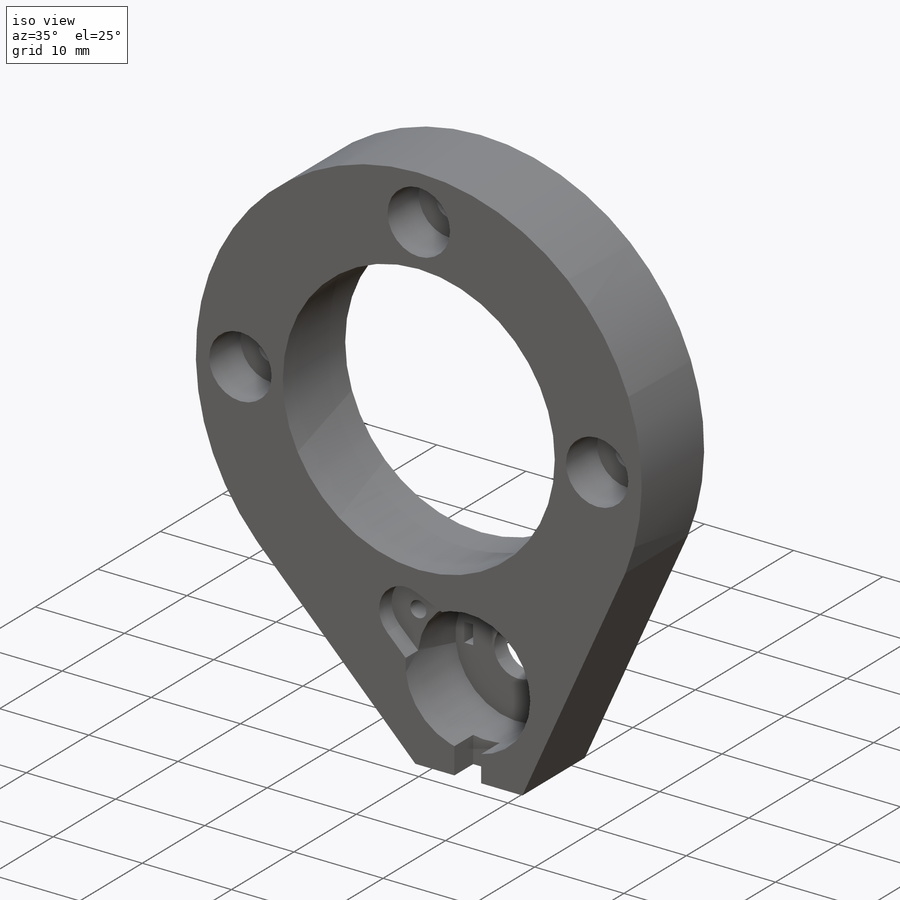
[diagram: iso view]
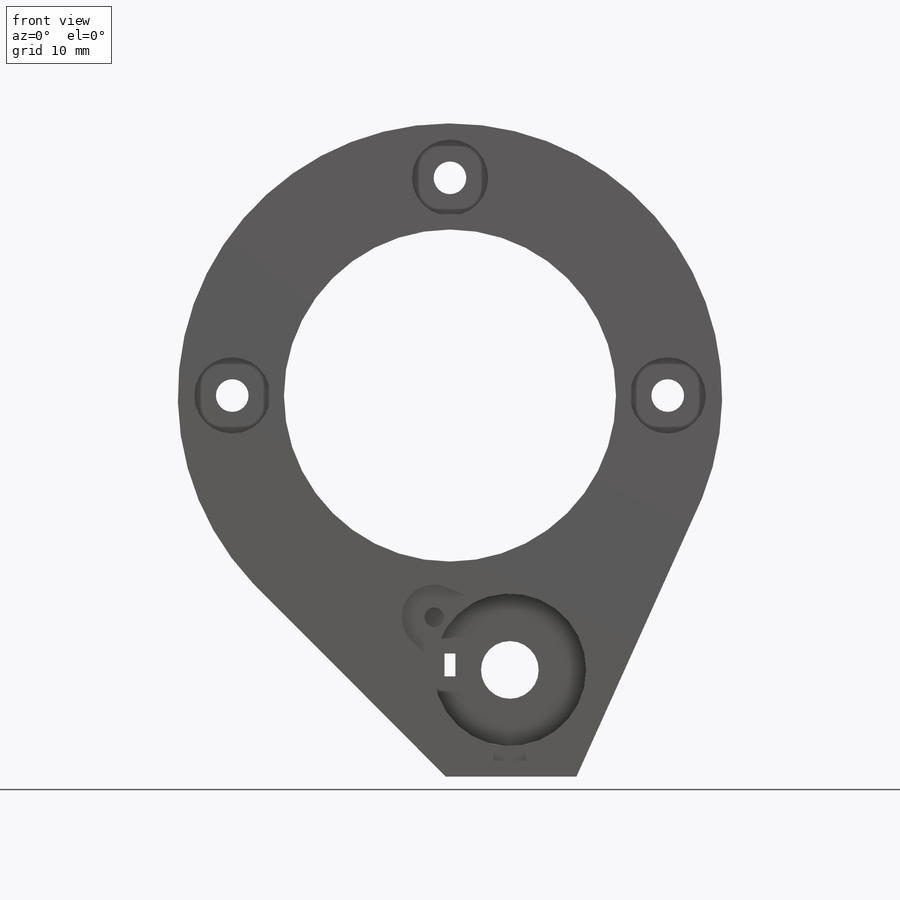
[diagram: front view]
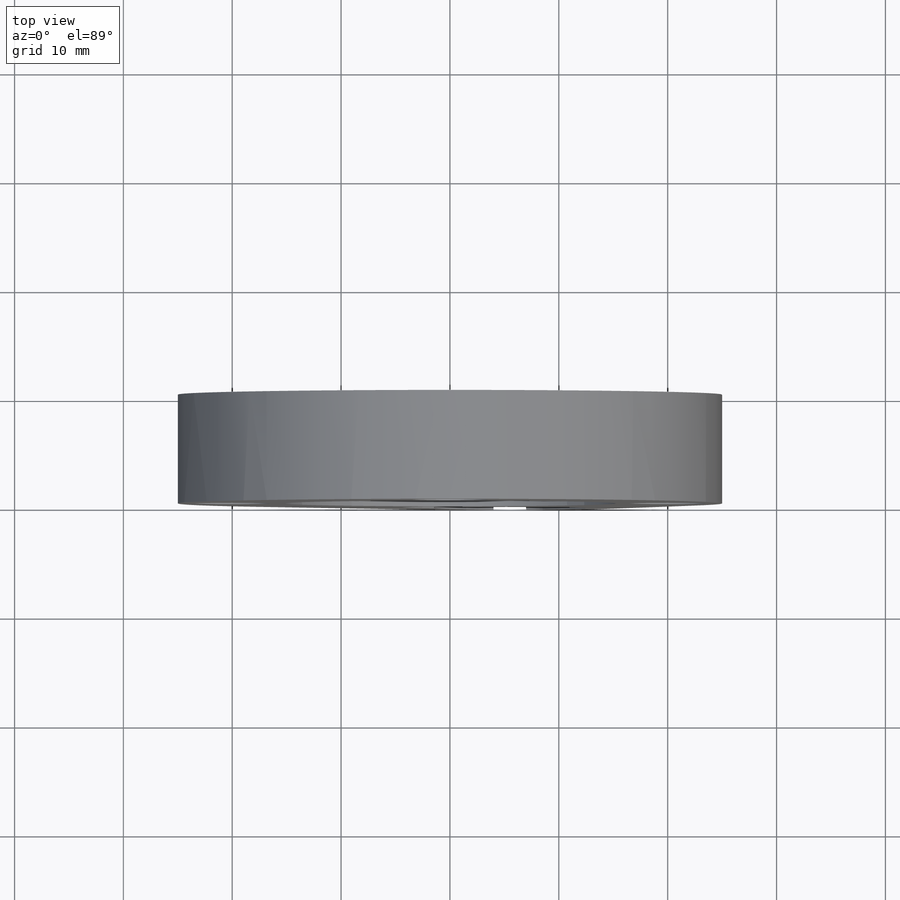
[diagram: top view]
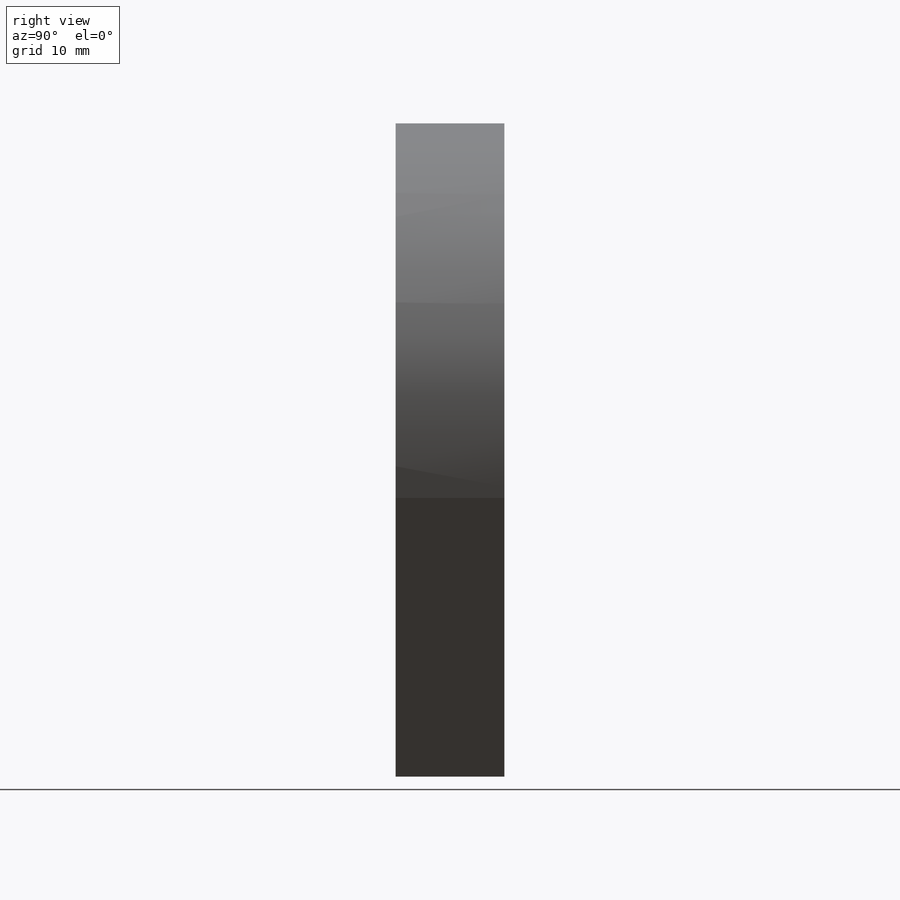
[diagram: right view]
SOLIDWORKS PART (.sldprt)
format: sldprt  version: not decoded by parser v0  size: 234,496 bytes
history: native  units: mm
features: sketch x11, cut_extrude x8, material x1, extrude x1, hole x1 (+14 scaffold rows collapsed)
feature tree (36):
  scaffold x14  (default folders/planes/origin — collapsed)
  material  "Material <not specified>"
  sketch  "Sketch1"  dims[D1=50.0mm D4=30.5mm D2=12.0mm D3=35.0mm]
  extrude  "Extrude1"  Depth=10mm
  sketch  "Sketch2"  dims[D1=30.5mm]
  cut_extrude  "Extrude2"  [1 undecoded]
  hole  "Ø5.3 (5.3) Diameter Hole1"  Diameter=5.3mm Depth=15mm
  sketch  "3DSketch1"  dims[D1=25.2mm D2=5.5mm]
  sketch  "Sketch3"  dims[hole-wizard template sketch: 46 standard entries collapsed; hole parameters kept: c15.Hole Dia.=5.3mm c15.Hole Depth=15.0mm c15.D3=~14.816244mm c15.Drill Angle=180.0deg]
  sketch  "Sketch4"  dims[D1=14.0mm]
  cut_extrude  "Extrude3"  Depth=8mm
  sketch  "Sketch5"  dims[D1=3.0mm]
  cut_extrude  "Extrude4"  Depth=3mm
  sketch  "Sketch6"  dims[c1.D3=5.1mm c1.D1=1.0mm c1.D2=2.1mm c2.D3=5.0mm]
  cut_extrude  "Extrude5"  [1 undecoded]
  sketch  "Sketch7"  dims[D1=1.8mm]
  cut_extrude  "Extrude6"  Depth=5mm
  sketch  "Sketch8"  dims[D1=6.0mm]
  cut_extrude  "Extrude7"  Depth=2mm
  sketch  "Sketch9"  dims[D1=40.0mm D2=3.0mm]
  cut_extrude  "Extrude9"  [1 undecoded]
  sketch  "Sketch10"  dims[D1=7.0mm]
  cut_extrude  "Extrude10"  Depth=5mm
decode coverage: 18 of 21 modeling features carry decoded parameters
note: ~ marks probable driven/reference dimensions
note: 3 parameter values undecoded
summary: no parameter record found for 3 features
note: suppression state not decoded; provenance and decode notes live in map.json
